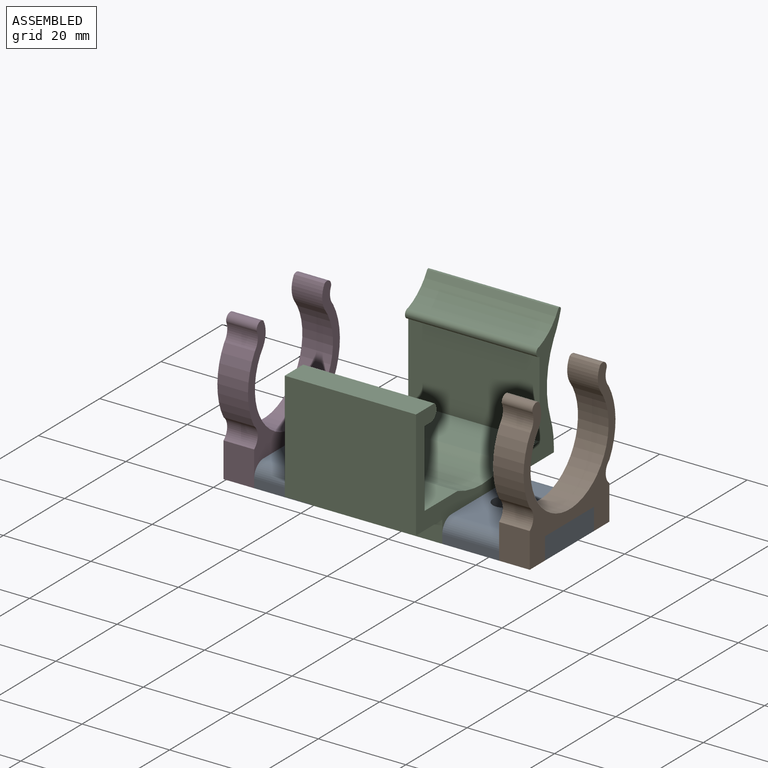
[diagram: assembled view]
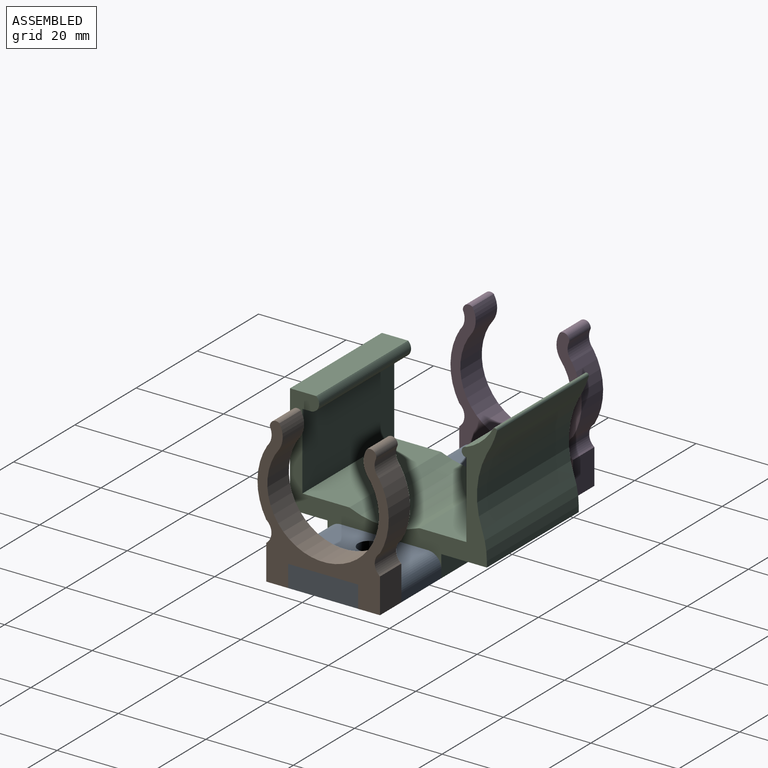
[diagram: assembled view, second angle]
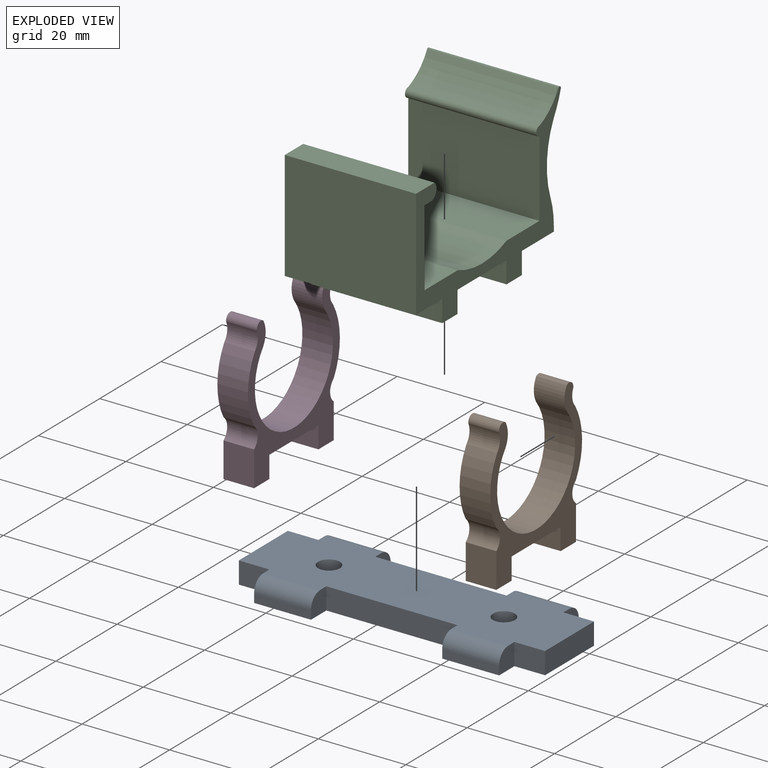
[diagram: exploded view]
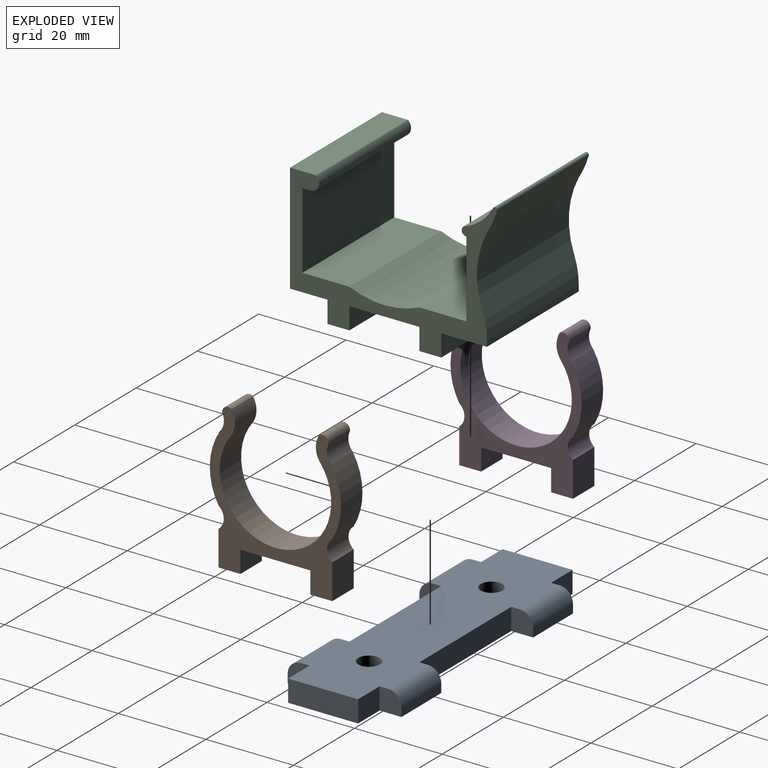
[diagram: exploded view, second angle]
ASSEMBLY  parts=4 mates=3
PART A: 28 faces, bbox 70x26x5 mm
  f0: plane 5x5mm, normal (1,0,0), area 23.1mm2, adj f1,f21,f22,f23,f27
  f1: plane 13x2mm, normal (0,1,0), area 26mm2, adj f0,f2,f23,f27
  f2: plane 5x5mm, normal (-1,0,0), area 23.1mm2, adj f1,f3,f22,f23,f27
  f3: plane 7x5mm, normal (0,1,0), area 35mm2, adj f2,f4,f22,f23
  f4: plane 16x5mm, normal (-1,0,0), area 80mm2, adj f3,f5,f22,f23
  f5: plane 7x5mm, normal (0,-1,0), area 35mm2, adj f4,f6,f22,f23
  f6: plane 5x5mm, normal (-1,0,0), area 23.1mm2, adj f5,f7,f22,f23,f26
  f7: plane 13x2mm, normal (0,-1,0), area 26mm2, adj f6,f8,f23,f26
  f8: plane 5x5mm, normal (1,0,0), area 23.1mm2, adj f7,f9,f22,f23,f26
  f9: plane 30x5mm, normal (0,-1,0), area 150mm2, adj f8,f10,f22,f23
  f10: plane 5x5mm, normal (-1,0,0), area 23.1mm2, adj f9,f11,f22,f23,f25
  f11: plane 13x2mm, normal (0,-1,0), area 26mm2, adj f10,f12,f23,f25
  f12: plane 5x5mm, normal (1,0,0), area 23.1mm2, adj f11,f13,f22,f23,f25
  f13: plane 7x5mm, normal (0,-1,0), area 35mm2, adj f12,f14,f22,f23
  f14: plane 16x5mm, normal (1,0,0), area 80mm2, adj f13,f15,f22,f23
  f15: plane 7x5mm, normal (0,1,0), area 35mm2, adj f14,f16,f22,f23
  f16: plane 5x5mm, normal (1,0,0), area 23.1mm2, adj f15,f17,f22,f23,f24
  f17: plane 13x2mm, normal (0,1,0), area 26mm2, adj f16,f18,f23,f24
  f18: plane 5x5mm, normal (-1,0,0), area 23.1mm2, adj f17,f21,f22,f23,f24
  f19: cylinder r=2.5mm len=5mm, axis (0,0,-1), area 78.5mm2, adj f22,f23
  f20: cylinder r=2.5mm len=5mm, axis (0,0,-1), area 78.5mm2, adj f22,f23
  f21: plane 30x5mm, normal (0,1,0), area 150mm2, adj f0,f18,f22,f23
  f22: plane 70x20mm, normal (0,0,1), area 1184.7mm2, adj f0,f2,f3,f4,f5,f6,f8,f9
  f23: plane 70x26mm, normal (0,0,-1), area 1340.7mm2, adj f0,f1,f2,f3,f4,f5,f6,f7
  f24: cylinder r=3mm len=13mm, axis (1,0,0), area 61.3mm2, adj f16,f17,f18,f22
  f25: cylinder r=3mm len=13mm, axis (-1,0,0), area 61.3mm2, adj f10,f11,f12,f22
  f26: cylinder r=3mm len=13mm, axis (-1,0,0), area 61.3mm2, adj f6,f7,f8,f22
  f27: cylinder r=3mm len=13mm, axis (1,0,0), area 61.3mm2, adj f0,f1,f2,f22
PART B: 20 faces, bbox 30x33.8x7 mm
  f0: cylinder r=3.56mm len=7mm, axis (0,0,-1), area 30.6mm2, adj f1,f17,f18,f19
  f1: cylinder r=15mm len=15.39mm, axis (0,0,-1), area 113.2mm2, adj f0,f2,f18,f19
  f2: cylinder r=3mm len=7mm, axis (0,0,-1), area 38.8mm2, adj f1,f3,f18,f19
  f3: plane 8x7mm, normal (-1,0,0), area 56mm2, adj f2,f4,f18,f19
  f4: plane 7x5mm, normal (0,-1,0), area 35mm2, adj f3,f5,f18,f19
  f5: plane 7x5mm, normal (1,0,0), area 35mm2, adj f4,f6,f18,f19
  f6: plane 16x7mm, normal (0,-1,0), area 112mm2, adj f5,f7,f18,f19
  f7: plane 7x5mm, normal (-1,0,0), area 35mm2, adj f6,f8,f18,f19
  f8: plane 7x5mm, normal (0,-1,0), area 35mm2, adj f7,f9,f18,f19
  f9: plane 8x7mm, normal (1,0,0), area 56mm2, adj f8,f10,f18,f19
  f10: cylinder r=3mm len=7mm, axis (0,0,-1), area 38.8mm2, adj f9,f11,f18,f19
  f11: cylinder r=15mm len=15.39mm, axis (0,0,-1), area 113.2mm2, adj f10,f12,f18,f19
  f12: cylinder r=3.56mm len=7mm, axis (0,0,-1), area 30.6mm2, adj f11,f13,f18,f19
  f13: cylinder r=1.37mm len=7mm, axis (0,0,-1), area 22mm2, adj f12,f14,f18,f19
  f14: cylinder r=5mm len=7mm, axis (0,0,-1), area 39.3mm2, adj f13,f15,f18,f19
  f15: cylinder r=12.75mm len=25.5mm, axis (0,0,-1), area 399.8mm2, adj f14,f16,f18,f19
  f16: cylinder r=5mm len=7mm, axis (0,0,-1), area 39.3mm2, adj f15,f17,f18,f19
  f17: cylinder r=1.37mm len=7mm, axis (0,0,-1), area 22mm2, adj f0,f16,f18,f19
  f18: plane 33.76x30mm, normal (0,0,1), area 269.3mm2, adj f0,f1,f2,f3,f4,f5,f6,f7
  f19: plane 33.76x30mm, normal (0,0,-1), area 269.3mm2, adj f0,f1,f2,f3,f4,f5,f6,f7
PART C: 27 faces, bbox 34.3x47.3x30 mm
  f0: plane 30x10.43mm, normal (-1,0,0), area 312.9mm2, adj f1,f23,f24,f25
  f1: plane 30x5mm, normal (0,1,0), area 150mm2, adj f0,f2,f24,f25
  f2: plane 30x5mm, normal (-1,0,0), area 150mm2, adj f1,f3,f24,f25
  f3: plane 30x5mm, normal (0,-1,0), area 150mm2, adj f2,f4,f24,f25
  f4: plane 30x16mm, normal (-1,0,0), area 480mm2, adj f3,f5,f24,f25
  f5: plane 30x5mm, normal (0,1,0), area 150mm2, adj f4,f6,f24,f25
  f6: plane 30x5mm, normal (-1,0,0), area 150mm2, adj f5,f7,f24,f25
  f7: plane 30x5mm, normal (0,-1,0), area 150mm2, adj f6,f8,f24,f25
  f8: plane 30x8.57mm, normal (-1,0,0), area 257.1mm2, adj f7,f9,f24,f25
  f9: plane 30x25mm, normal (0,-1,0), area 750mm2, adj f8,f10,f24,f25
  f10: plane 30x6mm, normal (1,0,0), area 180mm2, adj f9,f11,f24,f25
  f11: cylinder r=2mm len=30mm, axis (0,0,1), area 139.1mm2, adj f10,f12,f24,f25
  f12: plane 30x2.04mm, normal (-1,0,0), area 61.3mm2, adj f11,f13,f24,f25
  f13: plane 30x17.5mm, normal (0,1,0), area 525mm2, adj f12,f14,f24,f25
  f14: plane 30x10.75mm, normal (1,0,0), area 322.5mm2, adj f13,f15,f24,f25
  f15: cylinder r=20mm len=30mm, axis (0,0,1), area 493.8mm2, adj f14,f16,f24,f25
  f16: plane 30x10.75mm, normal (1,0,0), area 322.5mm2, adj f15,f17,f24,f25
  f17: plane 30x17.5mm, normal (0,-1,0), area 525mm2, adj f16,f18,f24,f25
  f18: cylinder r=1.07mm len=30mm, axis (0,0,1), area 101.2mm2, adj f17,f19,f24,f25
  f19: cylinder r=12mm len=30mm, axis (0,0,1), area 255.2mm2, adj f18,f20,f24,f25
  f20: cylinder r=0.5mm len=30mm, axis (0,0,1), area 39.2mm2, adj f19,f21,f24,f25
  f21: cylinder r=22mm len=30mm, axis (0,0,1), area 166.8mm2, adj f20,f22,f24,f25
  f22: cylinder r=20mm len=30mm, axis (0,0,1), area 497.4mm2, adj f21,f24,f25,f26
  f23: plane 30x1.32mm, normal (0,1,0), area 39.5mm2, adj f0,f24,f25,f26
  f24: plane 47.31x34.3mm, normal (0,0,-1), area 361.2mm2, adj f0,f1,f2,f3,f4,f5,f6,f7
  f25: plane 47.31x34.3mm, normal (0,0,1), area 361.2mm2, adj f0,f1,f2,f3,f4,f5,f6,f7
  f26: cylinder r=18mm len=30mm, axis (0,0,1), area 187.7mm2, adj f22,f23,f24,f25
PART D: same geometry as B
PLACE A t=(-34.69,13.02,29.98)mm
PLACE B rot(axis=(0.58,0.58,0.58),120deg) t=(-6.69,13.02,29.98)mm
PLACE C rot(axis=(0,-1,0),90deg) t=(-49.69,13.02,47.74)mm
PLACE D rot(axis=(0.58,0.58,0.58),120deg) t=(-69.69,13.02,29.98)mm
MATE fastened B.f5 <-> A.f13  axis (0,1,0) through (-3.19,5.02,32.48)mm
MATE fastened D.f5 <-> A.f5  axis (0,1,0) through (-66.19,5.02,32.48)mm
MATE pin_slot C.f4 <-> A.f22  axis (0,0,-1) through (-34.69,13.02,34.98)mm
